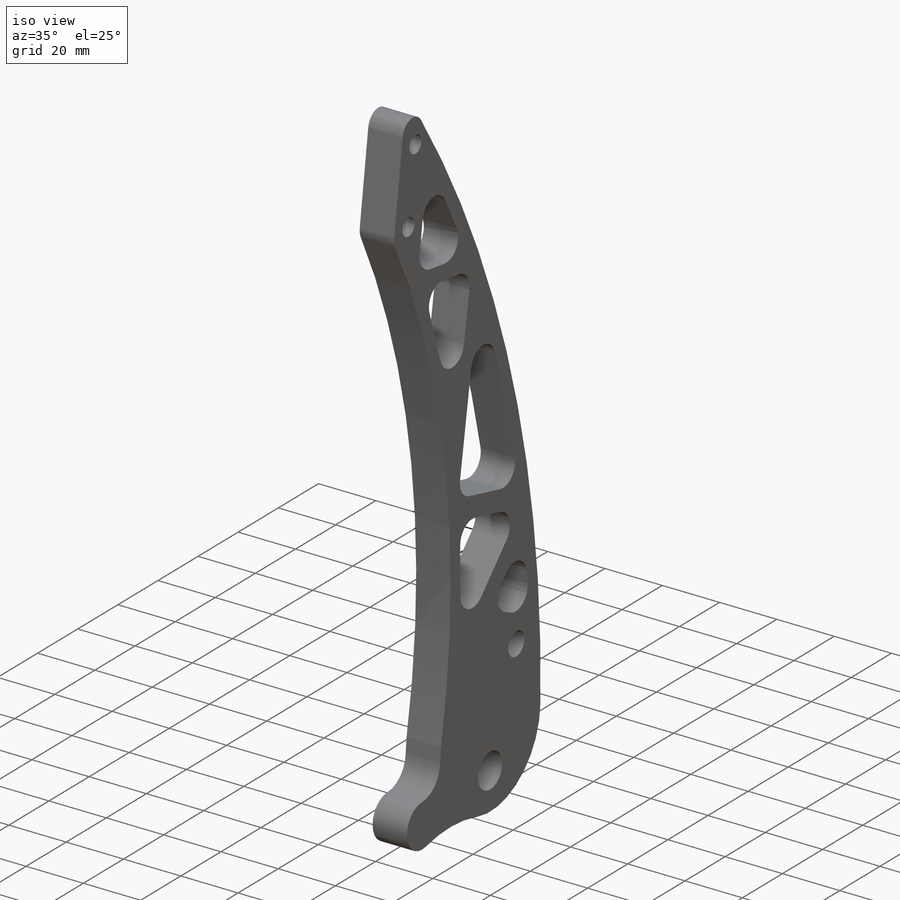
[diagram: iso view]
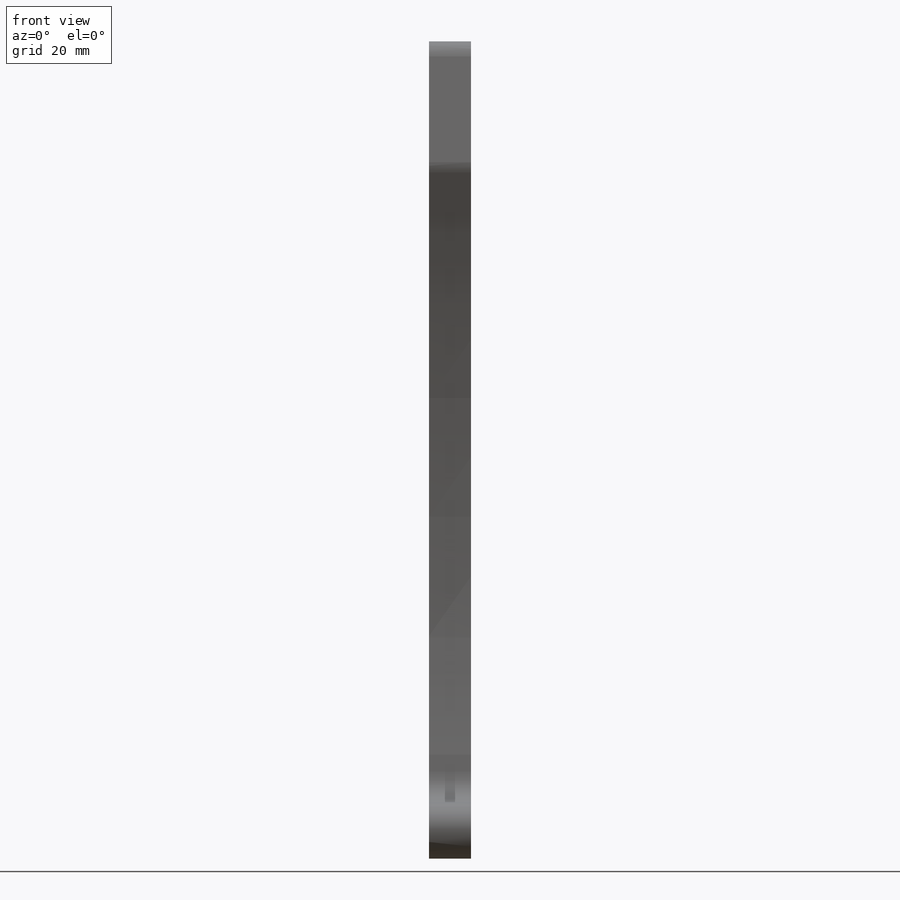
[diagram: front view]
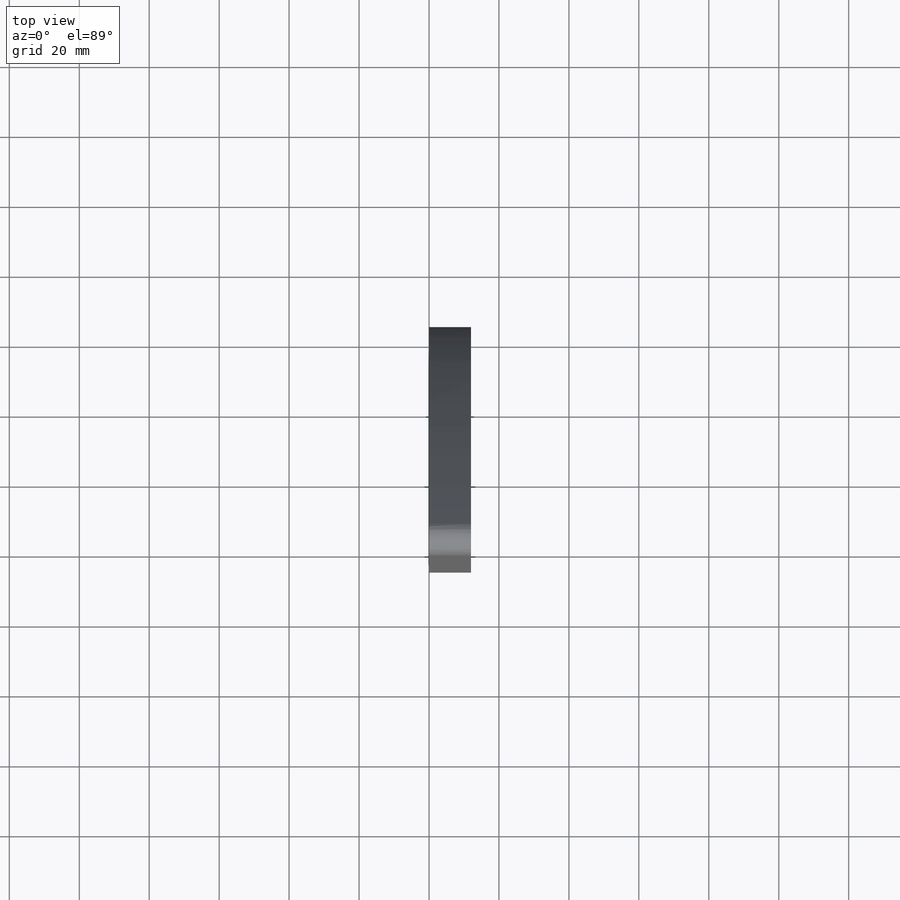
[diagram: top view]
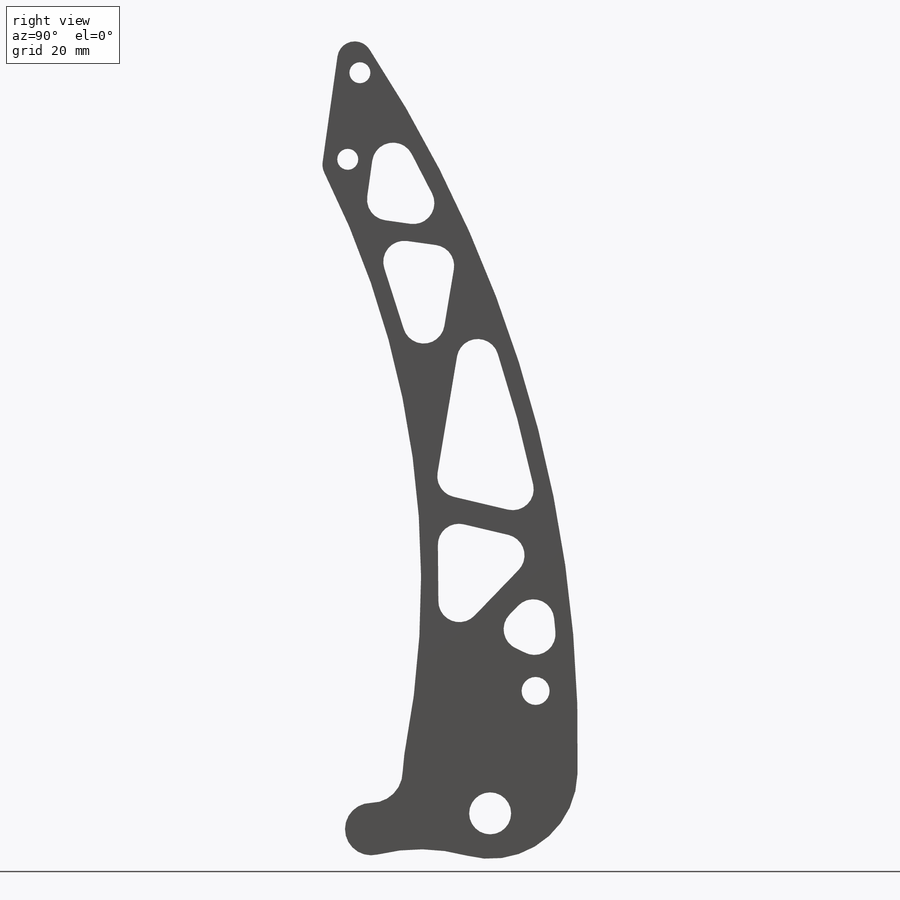
[diagram: right view]
SOLIDWORKS PART (.sldprt)
format: sldprt  version: not decoded by parser v0  size: 403,456 bytes
history: native  units: mm
features: sketch x5, cut_extrude x3, extrude x2, fillet x2, material x1 (+13 scaffold rows collapsed)
feature tree (26):
  scaffold x13  (default folders/planes/origin — collapsed)
  material  "6061-T6 (SS)"
  sketch  "Sketch1"  dims[c1.D2=20.0mm c1.D3=50.0mm c1.D5=360.0mm c1.D6=260.0mm c2.D2=12.0mm c2.D1=200.0mm c2.D4=220.0mm c3.D4=13.0deg c3.D5=~24.146044mm c3.D7=45.0mm c3.D8=~54.375334mm c4.D8=8.0deg c4.D9=12.0mm c4.D5=~245.295624mm]
  extrude  "Boss-Extrude1"  Depth=12mm
  sketch  "Sketch3"  dims[D2=6.0mm D1=25.0mm D3=7.0mm D4=175.0mm]
  cut_extrude  "Cut-Extrude2"  [1 undecoded]
  sketch  "Sketch4"  dims[c1.D3=25.0mm c1.D4=12.0mm c1.D5=4.0mm c1.D6=14.0mm c1.D7=5.0mm c1.D8=5.0mm c1.D9=~26.136584mm c2.D9=~0.180988deg c3.D9=7.0mm c3.D10=8.0mm c3.D5=2.0mm c4.D10=7.0mm c4.D1=5.0mm c4.D2=5.0mm]
  cut_extrude  "Cut-Extrude3"  [1 undecoded]
  fillet  "Fillet1"  Radius=6mm
  sketch  "Sketch2"  dims[c1.D3=8.0mm c1.D2=12.0mm c1.D1=220.0mm c2.D2=~214.361414mm c3.D2=13.0deg c4.D2=72.0mm c4.D4=13.0mm c5.D2=35.0mm]
  cut_extrude  "Cut-Extrude1"  [1 undecoded]
  sketch  "Sketch5"  dims[c1.D1=15.0mm c1.D2=50.0mm c1.D4=9.0mm c2.D2=40.0mm c2.D3=34.0mm c2.D5=16.5mm]
  extrude  "Boss-Extrude2"  [1 undecoded]
  fillet  "Fillet2"  Radius=5mm
decode coverage: 8 of 12 modeling features carry decoded parameters
note: ~ marks probable driven/reference dimensions
note: 4 parameter values undecoded
summary: no parameter record found for 4 features
note: suppression state not decoded; provenance and decode notes live in map.json
